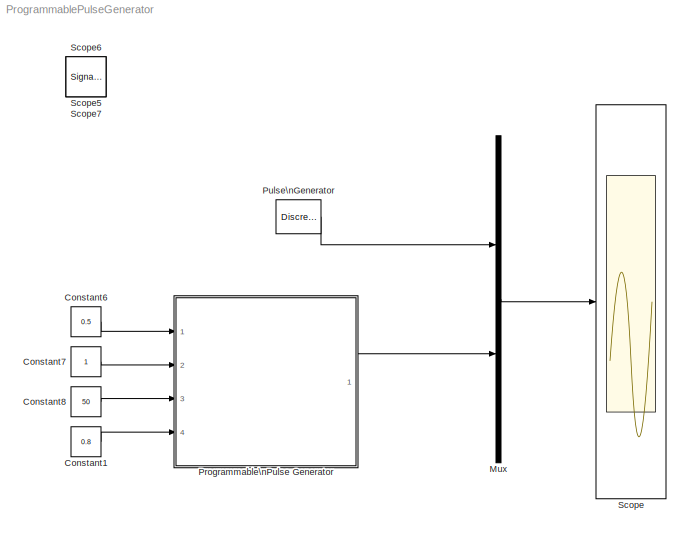
MODEL ProgrammablePulseGenerator
KIND model
CONFIG PostLoadFcn = , if any(exist('dsrtsu_mdlpostloadfcn', 'file') == [2, 3, 6]), try dsrtsu_mdlpostloadfcn('Execute', bdroot); catch fprintf('Error in PostLoadFcn (dsrtsu_mdlpostloadfcn) for model \"%s\":\\n %s\\n', bdroot, lasterr); end, end, \n
BLOCK [Constant] Constant1
  SID = 35
  Value = 0.8
BLOCK [Constant] Constant6
  SID = 1
  Value = 0.5
BLOCK [Constant] Constant7
  SID = 2
BLOCK [Constant] Constant8
  SID = 3
  Value = 50
BLOCK [Mux] Mux
  DisplayOption = bar
  Inputs = 2
  Ports = [2, 1]
  SID = 34
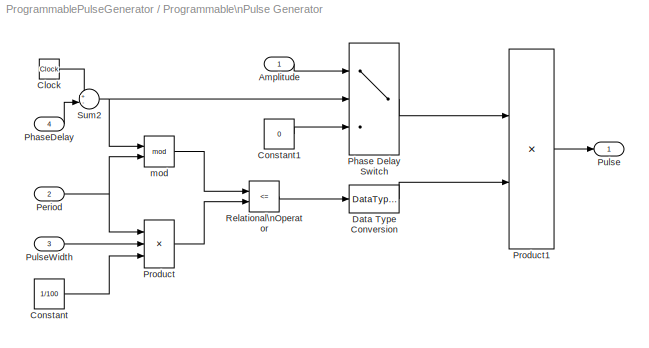
BLOCK [SubSystem] Programmable\nPulse Generator
  FunctionWithSeparateData = off
  MaskHideContents = off
  MinAlgLoopOccurrences = off
  Opaque = off
  Ports = [4, 1]
  PropExecContextOutsideSubsystem = off
  RTWSystemCode = Auto
  RequestExecContextInheritance = off
  SID = 5
BLOCK [Inport] Programmable\nPulse Generator/Amplitude
  IconDisplay = Port number
  SID = 6
BLOCK [Clock] Programmable\nPulse Generator/Clock
  SID = 10
BLOCK [Constant] Programmable\nPulse Generator/Constant
  SID = 11
  Value = 1/100
BLOCK [Constant] Programmable\nPulse Generator/Constant1
  SID = 33
  Value = 0
BLOCK [DataTypeConversion] Programmable\nPulse Generator/Data Type Conversion
  OutDataTypeStr = double
  RndMeth = Floor
  SID = 12
  SaturateOnIntegerOverflow = off
BLOCK [Inport] Programmable\nPulse Generator/Period
  IconDisplay = Port number
  Port = 2
  SID = 7
BLOCK [Switch] Programmable\nPulse Generator/Phase Delay Switch
  InputSameDT = off
  SID = 29
  SaturateOnIntegerOverflow = off
BLOCK [Inport] Programmable\nPulse Generator/PhaseDelay
  IconDisplay = Port number
  Port = 4
  SID = 26
BLOCK [Product] Programmable\nPulse Generator/Product
  InputSameDT = off
  Inputs = 3
  OutDataTypeStr = Inherit: Inherit via internal rule
  Ports = [3, 1]
  SID = 13
  SaturateOnIntegerOverflow = off
BLOCK [Product] Programmable\nPulse Generator/Product1
  InputSameDT = off
  OutDataTypeStr = Inherit: Inherit via internal rule
  Ports = [2, 1]
  SID = 14
  SaturateOnIntegerOverflow = off
BLOCK [Outport] Programmable\nPulse Generator/Pulse
  IconDisplay = Port number
  SID = 18
BLOCK [Inport] Programmable\nPulse Generator/PulseWidth
  IconDisplay = Port number
  Port = 3
  SID = 8
BLOCK [RelationalOperator] Programmable\nPulse Generator/Relational\nOperator
  InputSameDT = off
  Operator = <=
  Ports = [2, 1]
  SID = 15
BLOCK [Sum] Programmable\nPulse Generator/Sum2
  IconShape = round
  InputSameDT = off
  Inputs = +-
  OutDataTypeStr = Inherit: Inherit via internal rule
  Ports = [2, 1]
  SID = 30
  SaturateOnIntegerOverflow = off
BLOCK [Math] Programmable\nPulse Generator/mod
  Operator = mod
  Ports = [2, 1]
  SID = 17
BLOCK [DiscretePulseGenerator] Pulse\nGenerator
  Amplitude = 0.5
  Period = 1
  PhaseDelay = 0.8
  Ports = [0, 1]
  PulseType = Time based
  PulseWidth = 50
  SID = 19
BLOCK [Scope] Scope
  DataFormat = StructureWithTime
  Floating = off
  LimitDataPoints = off
  NumInputPorts = 1
  Ports = [1]
  SID = 20
  SampleTime = 0
  YMax = 1
  YMin = -1
  ZoomMode = xonly
BLOCK [SignalViewerScope] Scope5
  DataFormat = Array
  IOType = viewer
  LimitDataPoints = off
  MaxDataPoints = 7500
  NumInputPorts = 1
  Ports = []
  RefreshTime = 0.035000
  SID = 21
  ShowDataMarkers = off
  ShowLegends = off
  YMax = 2
  YMin = 0
  ZoomMode = xonly
BLOCK [SignalViewerScope] Scope6
  DataFormat = Array
  IOType = viewer
  LimitDataPoints = off
  MaxDataPoints = 7500
  NumInputPorts = 1
  Ports = []
  RefreshTime = 0.035000
  SID = 22
  SaveName = ScopeData1
  ShowDataMarkers = off
  ShowLegends = off
  ZoomMode = yonly
BLOCK [SignalViewerScope] Scope7
  DataFormat = Array
  IOType = viewer
  LimitDataPoints = off
  MaxDataPoints = 7500
  NumInputPorts = 1
  Ports = []
  RefreshTime = 0.035000
  SID = 23
  SaveName = ScopeData2
  ShowDataMarkers = off
  ShowLegends = off
LINE Constant1:1 -> Programmable\nPulse Generator:4
LINE Constant6:1 -> Programmable\nPulse Generator:1
LINE Constant7:1 -> Programmable\nPulse Generator:2
LINE Constant8:1 -> Programmable\nPulse Generator:3
LINE Mux:1 -> Scope:1
LINE Programmable\nPulse Generator/Amplitude:1 -> Programmable\nPulse Generator/Phase Delay Switch:1
LINE Programmable\nPulse Generator/Clock:1 -> Programmable\nPulse Generator/Sum2:1
LINE Programmable\nPulse Generator/Constant1:1 -> Programmable\nPulse Generator/Phase Delay Switch:3
LINE Programmable\nPulse Generator/Constant:1 -> Programmable\nPulse Generator/Product:3
LINE Programmable\nPulse Generator/Data Type Conversion:1 -> Programmable\nPulse Generator/Product1:2
NET Programmable\nPulse Generator/Period:1 -> Programmable\nPulse Generator/Product:1, Programmable\nPulse Generator/mod:2
LINE Programmable\nPulse Generator/Phase Delay Switch:1 -> Programmable\nPulse Generator/Product1:1
LINE Programmable\nPulse Generator/PhaseDelay:1 -> Programmable\nPulse Generator/Sum2:2
LINE Programmable\nPulse Generator/Product1:1 -> Programmable\nPulse Generator/Pulse:1
LINE Programmable\nPulse Generator/Product:1 -> Programmable\nPulse Generator/Relational\nOperator:2
LINE Programmable\nPulse Generator/PulseWidth:1 -> Programmable\nPulse Generator/Product:2
LINE Programmable\nPulse Generator/Relational\nOperator:1 -> Programmable\nPulse Generator/Data Type Conversion:1
NET Programmable\nPulse Generator/Sum2:1 -> Programmable\nPulse Generator/Phase Delay Switch:2, Programmable\nPulse Generator/mod:1
LINE Programmable\nPulse Generator/mod:1 -> Programmable\nPulse Generator/Relational\nOperator:1
LINE Programmable\nPulse Generator:1 -> Mux:2
LINE Pulse\nGenerator:1 -> Mux:1
note: NET lines group one-source signal fan-out (src -> all destinations, sorted); 1:1 wires keep LINE
